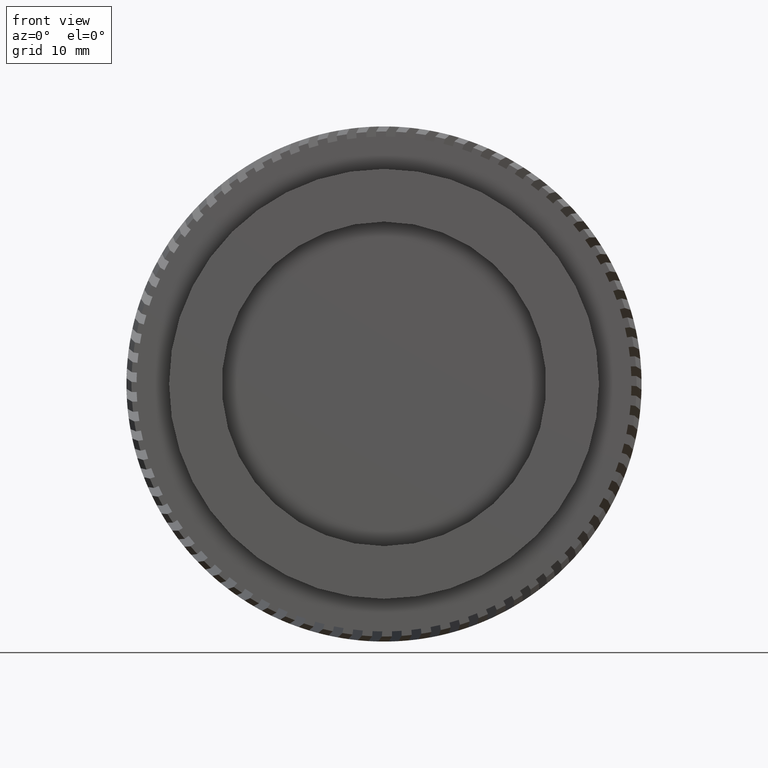
[diagram: clean part render]
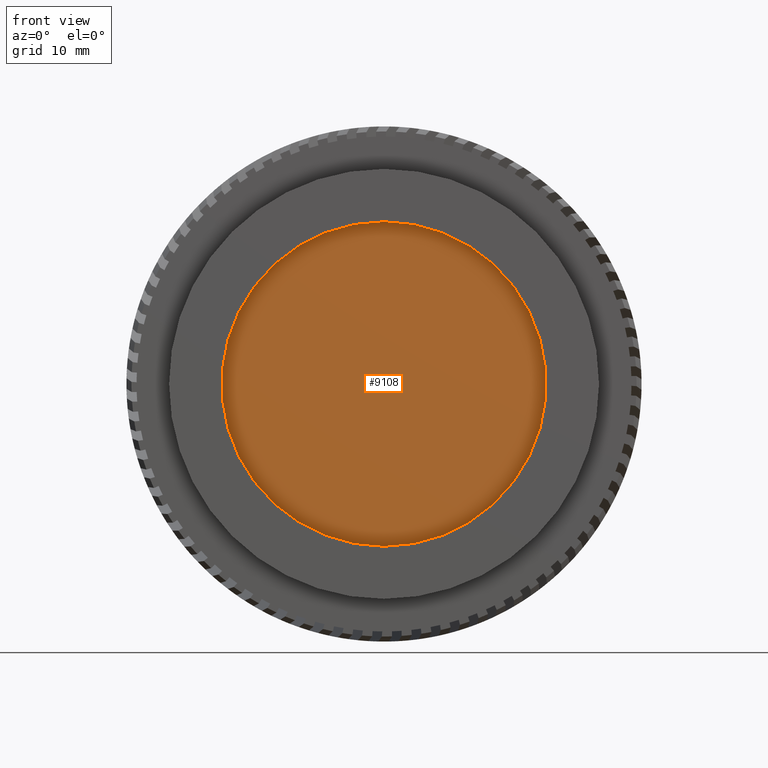
[diagram: same view with one face highlighted and labeled with its STEP entity id]
A machine part, front view. The second image highlights one B-rep face of the part: STEP entity #9108.
In plain terms, the highlighted planar face has unit normal (-0, 1, 0).
Its self-contained STEP definition (entity closure, byte-faithful):
#600 = DIRECTION ( 'NONE',  ( 0.0000000000000000000, 0.0000000000000000000, 1.000000000000000000 ) ) ;
#879 = VERTEX_POINT ( 'NONE', #13279 ) ;
#1062 = CARTESIAN_POINT ( 'NONE',  ( 1.959434878635766300E-015, 18.87125740523061500, -16.00000000000000700 ) ) ;
#1405 = DIRECTION ( 'NONE',  ( -0.0000000000000000000, 1.000000000000000000, 0.0000000000000000000 ) ) ;
#3391 = VERTEX_POINT ( 'NONE', #1062 ) ;
#3507 = DIRECTION ( 'NONE',  ( 0.0000000000000000000, 0.0000000000000000000, 1.000000000000000000 ) ) ;
#5657 = FACE_OUTER_BOUND ( 'NONE', #18441, .T. ) ;
#6039 = AXIS2_PLACEMENT_3D ( 'NONE', #13290, #19484, #600 ) ;
#7617 = ORIENTED_EDGE ( 'NONE', *, *, #16110, .F. ) ;
#8203 = ORIENTED_EDGE ( 'NONE', *, *, #10730, .F. ) ;
#8346 = DIRECTION ( 'NONE',  ( -0.0000000000000000000, 1.000000000000000000, -0.0000000000000000000 ) ) ;
#9108 = ADVANCED_FACE ( 'NONE', ( #5657 ), #15230, .F. ) ;
#9270 = CARTESIAN_POINT ( 'NONE',  ( 0.0000000000000000000, 18.87125740523061500, 0.0000000000000000000 ) ) ;
#10730 = EDGE_CURVE ( 'NONE', #3391, #879, #12490, .T. ) ;
#12320 = DIRECTION ( 'NONE',  ( 0.0000000000000000000, 0.0000000000000000000, 1.000000000000000000 ) ) ;
#12490 = CIRCLE ( 'NONE', #6039, 16.00000000000000700 ) ;
#13279 = CARTESIAN_POINT ( 'NONE',  ( 0.0000000000000000000, 18.87125740523061500, 16.00000000000000700 ) ) ;
#13290 = CARTESIAN_POINT ( 'NONE',  ( 0.0000000000000000000, 18.87125740523061500, 0.0000000000000000000 ) ) ;
#13984 = AXIS2_PLACEMENT_3D ( 'NONE', #17664, #8346, #3507 ) ;
#14020 = AXIS2_PLACEMENT_3D ( 'NONE', #9270, #1405, #12320 ) ;
#15132 = CIRCLE ( 'NONE', #13984, 16.00000000000000700 ) ;
#15230 = PLANE ( 'NONE',  #14020 ) ;
#16110 = EDGE_CURVE ( 'NONE', #879, #3391, #15132, .T. ) ;
#17664 = CARTESIAN_POINT ( 'NONE',  ( 0.0000000000000000000, 18.87125740523061500, 0.0000000000000000000 ) ) ;
#18441 = EDGE_LOOP ( 'NONE', ( #7617, #8203 ) ) ;
#19484 = DIRECTION ( 'NONE',  ( -0.0000000000000000000, 1.000000000000000000, -0.0000000000000000000 ) ) ;